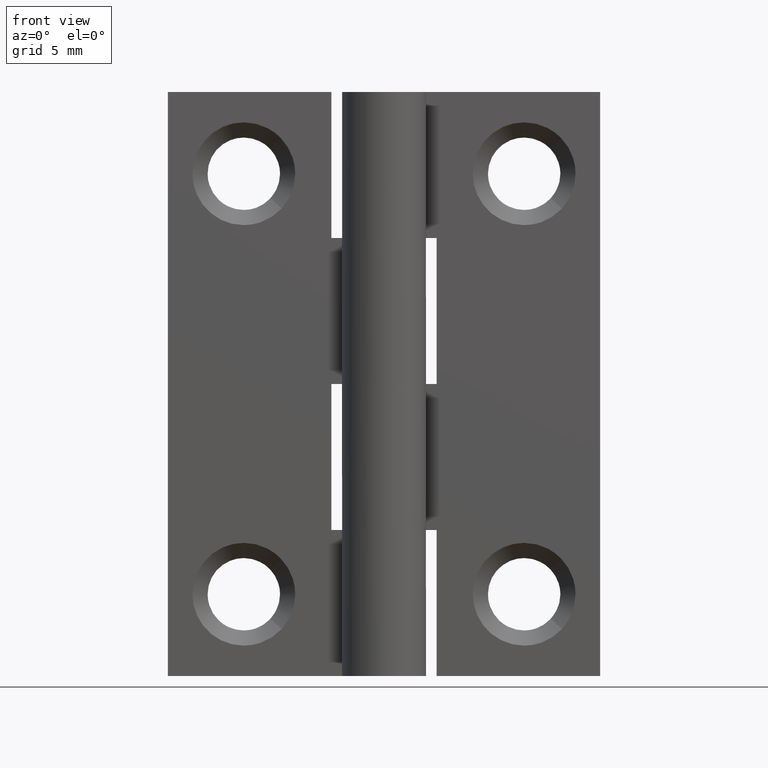
[diagram: clean part render]
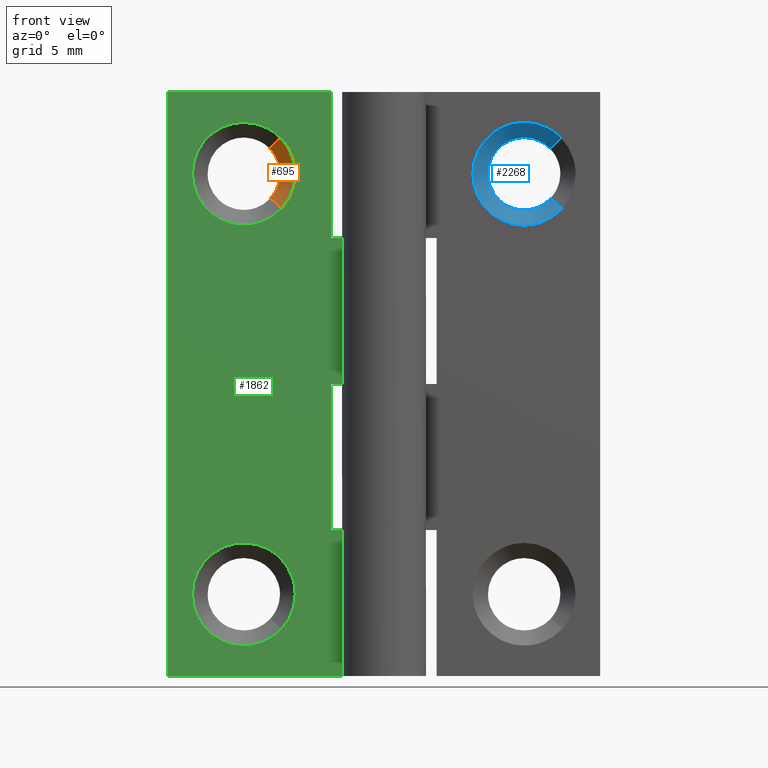
[diagram: same view with three faces highlighted in distinct colors, each labeled with its STEP entity id]
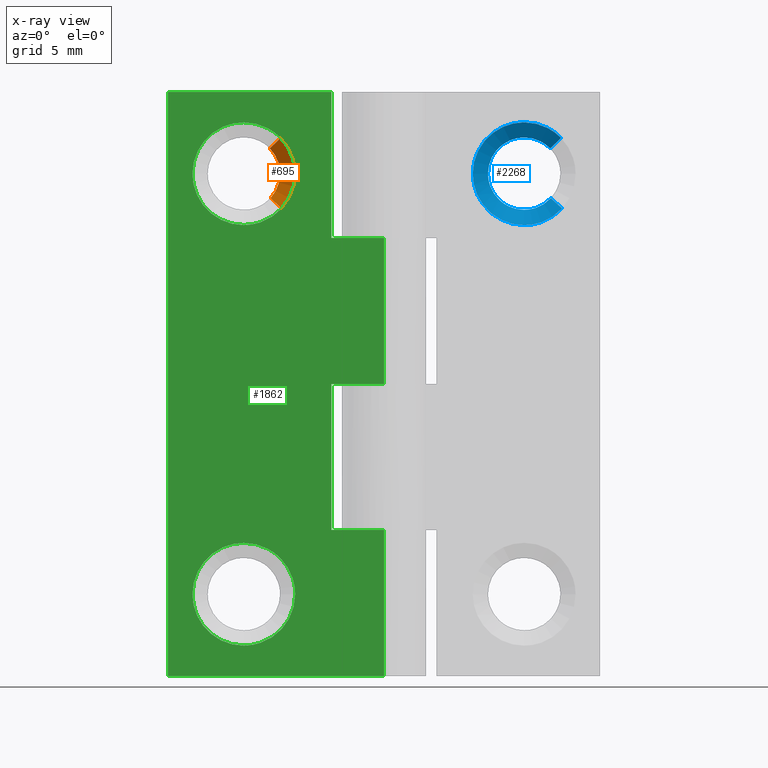
[diagram: x-ray of the same camera — body ghosted, the three highlighted faces saturated]
A machine part, front view with three faces highlighted in distinct colors.
The next image is the same camera in x-ray (body ghosted, the three faces saturated) — at least one of them is partly hidden behind the body in this view.
Their STEP definitions:

[orange] entity #695 — the highlighted face is a freeform B-spline surface patch.
#440=CARTESIAN_POINT('',(-4.857220048541205,1.650000063441865,20.452835105436360));
#441=VERTEX_POINT('',#440);
#451=CARTESIAN_POINT('',(-4.449999988079091,1.650000095367430,21.499999743619860));
#452=VERTEX_POINT('',#451);
#453=CARTESIAN_POINT('',(-4.449999988079091,1.650000095367430,21.499999743619860));
#454=CARTESIAN_POINT('',(-4.449987719164124,1.650000092081241,21.392212056831688));
#455=CARTESIAN_POINT('',(-4.475064349071539,1.650000084778587,21.152683532748259));
#456=CARTESIAN_POINT('',(-4.602483156833156,1.650000073658158,20.787931728221800));
#457=CARTESIAN_POINT('',(-4.760087620779355,1.650000066671442,20.558765611877210));
#458=CARTESIAN_POINT('',(-4.857220048541205,1.650000063441865,20.452835105436360));
#459=B_SPLINE_CURVE_WITH_KNOTS('',3,(#453,#454,#455,#456,#457,#458),.UNSPECIFIED.,.F.,.U.,(4,1,1,4),(7.206778E-009,0.323365275200569,0.718586559867803,1.149741867565531),.UNSPECIFIED.);
#460=EDGE_CURVE('',#452,#441,#459,.T.);
#462=CARTESIAN_POINT('',(-4.889191053383938,1.650000127403112,22.581019529490920));
#463=VERTEX_POINT('',#462);
#464=CARTESIAN_POINT('',(-4.889191053383938,1.650000127403112,22.581019529490920));
#465=CARTESIAN_POINT('',(-4.815312417647066,1.650000125153738,22.505116025787380));
#466=CARTESIAN_POINT('',(-4.667629936197859,1.650000119622016,22.318452462446949));
#467=CARTESIAN_POINT('',(-4.496328956959897,1.650000108845582,21.954809558195819));
#468=CARTESIAN_POINT('',(-4.449922581075541,1.650000100168413,21.662005349214841));
#469=CARTESIAN_POINT('',(-4.449999988079091,1.650000095367430,21.499999743619860));
#470=B_SPLINE_CURVE_WITH_KNOTS('',3,(#464,#465,#466,#467,#468,#469),.UNSPECIFIED.,.F.,.U.,(4,1,1,4),(7.687952E-009,0.317770022141391,0.710307216909040,1.196309682102102),.UNSPECIFIED.);
#471=EDGE_CURVE('',#463,#452,#470,.T.);
#575=CARTESIAN_POINT('',(-4.423367943478818,1.000000054208371,23.034350303094978));
#576=VERTEX_POINT('',#575);
#577=CARTESIAN_POINT('',(-4.889191053383938,1.650000127403112,22.581019529490920));
#578=CARTESIAN_POINT('',(-4.423367943478818,1.000000054208371,23.034350303094978));
#579=QUASI_UNIFORM_CURVE('',1,(#577,#578),.UNSPECIFIED.,.F.,.U.);
#580=EDGE_CURVE('',#463,#576,#579,.T.);
#628=CARTESIAN_POINT('',(-4.377989704373885,0.999999945977960,20.013701401540668));
#629=VERTEX_POINT('',#628);
#640=CARTESIAN_POINT('',(-4.857220048541205,1.650000063441865,20.452835105436360));
#641=CARTESIAN_POINT('',(-4.377989704373885,0.999999945977960,20.013701401540668));
#642=QUASI_UNIFORM_CURVE('',1,(#640,#641),.UNSPECIFIED.,.F.,.U.);
#643=EDGE_CURVE('',#441,#629,#642,.T.);
#653=CARTESIAN_POINT('',(-4.869200876537619,1.666250097751616,20.463813511619840));
#654=CARTESIAN_POINT('',(-3.890674601857112,1.666250097751615,21.531687553698323));
#655=CARTESIAN_POINT('',(-4.900836563448170,1.666250097751616,22.569686326019209));
#656=CARTESIAN_POINT('',(-4.365709547544705,0.983343747556210,20.002448711016179));
#657=CARTESIAN_POINT('',(-2.951491836364987,0.983343747556209,21.545796521589338));
#658=CARTESIAN_POINT('',(-4.411431108520517,0.983343747556210,23.045967018777347));
#666=(BOUNDED_SURFACE()B_SPLINE_SURFACE(2,1,((#653,#656),(#654,#657),(#655,#658)),.UNSPECIFIED.,.F.,.F.,.U.)B_SPLINE_SURFACE_WITH_KNOTS((3,3),(2,2),(0.0,3.524801735090279),(0.0,1.0),.UNSPECIFIED.)GEOMETRIC_REPRESENTATION_ITEM()RATIONAL_B_SPLINE_SURFACE(((1.0,1.0),(0.718822509939086,0.718822509939086),(0.977505800795127,0.977505800795127)))REPRESENTATION_ITEM('')SURFACE());
#667=ORIENTED_EDGE('',*,*,#471,.T.);
#668=ORIENTED_EDGE('',*,*,#460,.T.);
#669=ORIENTED_EDGE('',*,*,#643,.T.);
#670=CARTESIAN_POINT('',(-3.799999952316328,1.0,21.499999566172811));
#671=VERTEX_POINT('',#670);
#672=CARTESIAN_POINT('',(-3.799999952316328,1.0,21.499999566172811));
#673=CARTESIAN_POINT('',(-3.799997068031389,0.999999995675077,21.381008764471819));
#674=CARTESIAN_POINT('',(-3.822788362646365,0.999999985480515,21.100527655255519));
#675=CARTESIAN_POINT('',(-3.937791239896375,0.999999970513134,20.688733036061819));
#676=CARTESIAN_POINT('',(-4.135386750002986,0.999999956753300,20.310161240005641));
#677=CARTESIAN_POINT('',(-4.297596513956023,0.999999949166511,20.101427280786861));
#678=CARTESIAN_POINT('',(-4.377989704373885,0.999999945977960,20.013701401540668));
#679=B_SPLINE_CURVE_WITH_KNOTS('',3,(#672,#673,#674,#675,#676,#677,#678),.UNSPECIFIED.,.F.,.U.,(4,1,1,1,4),(5.727445E-009,0.356976115747982,0.841440549952373,1.274915535550264,1.631891645570999),.UNSPECIFIED.);
#680=EDGE_CURVE('',#671,#629,#679,.T.);
#681=ORIENTED_EDGE('',*,*,#680,.F.);
#682=CARTESIAN_POINT('',(-4.423367943478818,1.000000054208371,23.034350303094978));
#683=CARTESIAN_POINT('',(-4.330841075420065,1.000000050849956,22.939291347931331));
#684=CARTESIAN_POINT('',(-4.157470980341508,1.000000043295683,22.725470073343669));
#685=CARTESIAN_POINT('',(-3.959291439475692,1.000000030309538,22.357901601251310));
#686=CARTESIAN_POINT('',(-3.830031071692917,1.000000015621937,21.942173081330271));
#687=CARTESIAN_POINT('',(-3.799980880090818,1.000000005311584,21.650342654915711));
#688=CARTESIAN_POINT('',(-3.799999952316328,1.0,21.499999566172811));
#689=B_SPLINE_CURVE_WITH_KNOTS('',3,(#682,#683,#684,#685,#686,#687,#688),.UNSPECIFIED.,.F.,.U.,(4,1,1,1,4),(5.861646E-009,0.397965776495180,0.822466259856777,1.246959783288301,1.697988019448022),.UNSPECIFIED.);
#690=EDGE_CURVE('',#576,#671,#689,.T.);
#691=ORIENTED_EDGE('',*,*,#690,.F.);
#692=ORIENTED_EDGE('',*,*,#580,.F.);
#693=EDGE_LOOP('',(#667,#668,#669,#681,#691,#692));
#694=FACE_OUTER_BOUND('',#693,.T.);
#695=ADVANCED_FACE('',(#694),#666,.F.);

[blue] entity #2268 — the highlighted face is a freeform B-spline surface patch.
#1964=CARTESIAN_POINT('',(4.816488711542842,1.649999976150168,22.500900221674140));
#1965=VERTEX_POINT('',#1964);
#1966=CARTESIAN_POINT('',(6.0,1.649999976158140,23.050000011920929));
#1967=VERTEX_POINT('',#1966);
#1968=CARTESIAN_POINT('',(4.816488711542842,1.649999976150168,22.500900221674140));
#1969=CARTESIAN_POINT('',(4.897988254699667,1.649999976150714,22.597323346124998));
#1970=CARTESIAN_POINT('',(5.038060369335728,1.649999976151667,22.726850595842070));
#1971=CARTESIAN_POINT('',(5.311335245811836,1.649999976153496,22.899498486148811));
#1972=CARTESIAN_POINT('',(5.614247215063305,1.649999976155550,23.018135179880559));
#1973=CARTESIAN_POINT('',(5.873751313859565,1.649999976157285,23.050026474839040));
#1974=CARTESIAN_POINT('',(6.0,1.649999976158140,23.050000011920929));
#1975=B_SPLINE_CURVE_WITH_KNOTS('',3,(#1968,#1969,#1970,#1971,#1972,#1973,#1974),.UNSPECIFIED.,.F.,.U.,(4,1,1,1,4),(8.833140E-009,0.378746221844834,0.568120243163941,0.967906547145426,1.346652870738563),.UNSPECIFIED.);
#1976=EDGE_CURVE('',#1965,#1967,#1975,.T.);
#2038=CARTESIAN_POINT('',(4.933050459310293,1.649999976167430,20.375669751845191));
#2039=VERTEX_POINT('',#2038);
#2045=CARTESIAN_POINT('',(6.0,1.649999976158140,19.949999988079071));
#2046=VERTEX_POINT('',#2045);
#2047=CARTESIAN_POINT('',(6.0,1.649999976158140,19.949999988079071));
#2048=CARTESIAN_POINT('',(5.908062756338569,1.649999976158941,19.949991200788030));
#2049=CARTESIAN_POINT('',(5.730322389867601,1.649999976160486,19.965863178959300));
#2050=CARTESIAN_POINT('',(5.451040865478932,1.649999976162923,20.040430934254790));
#2051=CARTESIAN_POINT('',(5.179175147525877,1.649999976165288,20.172027392284800));
#2052=CARTESIAN_POINT('',(5.008623529221798,1.649999976166773,20.303938584391840));
#2053=CARTESIAN_POINT('',(4.933050459310293,1.649999976167430,20.375669751845191));
#2054=B_SPLINE_CURVE_WITH_KNOTS('',3,(#2047,#2048,#2049,#2050,#2051,#2052,#2053),.UNSPECIFIED.,.F.,.U.,(4,1,1,1,4),(7.082468E-009,0.275811247293351,0.533236658323165,0.864208669840786,1.176795112662131),.UNSPECIFIED.);
#2055=EDGE_CURVE('',#2046,#2039,#2054,.T.);
#2057=CARTESIAN_POINT('',(7.142779951458797,1.649999944232576,20.452835105436360));
#2058=VERTEX_POINT('',#2057);
#2059=CARTESIAN_POINT('',(7.142779951458797,1.649999944232576,20.452835105436360));
#2060=CARTESIAN_POINT('',(7.043340252355108,1.649999947010597,20.344238730321020));
#2061=CARTESIAN_POINT('',(6.855044385543772,1.649999952270977,20.190031661758510));
#2062=CARTESIAN_POINT('',(6.571085141084806,1.649999960203872,20.051709938848919));
#2063=CARTESIAN_POINT('',(6.301162115166700,1.649999967744652,19.970735417190280));
#2064=CARTESIAN_POINT('',(6.113778696551398,1.649999972979527,19.949976056516231));
#2065=CARTESIAN_POINT('',(6.0,1.649999976158140,19.949999988079071));
#2066=B_SPLINE_CURVE_WITH_KNOTS('',3,(#2059,#2060,#2061,#2062,#2063,#2064,#2065),.UNSPECIFIED.,.F.,.U.,(4,1,1,1,4),(8.217338E-009,0.441723530923200,0.722816589274277,0.943677308921619,1.285007694871770),.UNSPECIFIED.);
#2067=EDGE_CURVE('',#2058,#2046,#2066,.T.);
#2080=CARTESIAN_POINT('',(7.110808946616062,1.650000008193821,22.581019529490920));
#2081=VERTEX_POINT('',#2080);
#2092=CARTESIAN_POINT('',(6.0,1.649999976158140,23.050000011920929));
#2093=CARTESIAN_POINT('',(6.148361815843535,1.649999980436887,23.050053996776860));
#2094=CARTESIAN_POINT('',(6.380530000530061,1.649999987132613,23.016401404977270));
#2095=CARTESIAN_POINT('',(6.688442462497515,1.649999996012790,22.897558620824299));
#2096=CARTESIAN_POINT('',(6.915844602264912,1.650000002571059,22.760301693124429));
#2097=CARTESIAN_POINT('',(7.052331114469208,1.650000006507317,22.641115074687612));
#2098=CARTESIAN_POINT('',(7.110808946616062,1.650000008193821,22.581019529490920));
#2099=B_SPLINE_CURVE_WITH_KNOTS('',3,(#2092,#2093,#2094,#2095,#2096,#2097,#2098),.UNSPECIFIED.,.F.,.U.,(4,1,1,1,4),(7.938502E-009,0.445066984126021,0.696620764781736,0.986882929264315,1.238440114684984),.UNSPECIFIED.);
#2100=EDGE_CURVE('',#1967,#2081,#2099,.T.);
#2119=CARTESIAN_POINT('',(4.449999988079092,1.649999976158140,21.500000256380140));
#2120=VERTEX_POINT('',#2119);
#2121=CARTESIAN_POINT('',(4.449999988079092,1.649999976158140,21.500000256380140));
#2122=CARTESIAN_POINT('',(4.449996233969413,1.649999976157367,21.596340536460509));
#2123=CARTESIAN_POINT('',(4.471171609991687,1.649999976155574,21.823032570346090));
#2124=CARTESIAN_POINT('',(4.583606349983270,1.649999976152796,22.170902456364640));
#2125=CARTESIAN_POINT('',(4.728631358658272,1.649999976150993,22.397068744310431));
#2126=CARTESIAN_POINT('',(4.816488711542842,1.649999976150168,22.500900221674140));
#2127=B_SPLINE_CURVE_WITH_KNOTS('',3,(#2121,#2122,#2123,#2124,#2125,#2126),.UNSPECIFIED.,.F.,.U.,(4,1,1,4),(6.224523E-009,0.289026049830418,0.680060551453402,1.088097039100226),.UNSPECIFIED.);
#2128=EDGE_CURVE('',#2120,#1965,#2127,.T.);
#2130=CARTESIAN_POINT('',(4.933050459310293,1.649999976167430,20.375669751845191));
#2131=CARTESIAN_POINT('',(4.856997937539508,1.649999976166834,20.447818382913479));
#2132=CARTESIAN_POINT('',(4.736806159221439,1.649999976165679,20.587659132805850));
#2133=CARTESIAN_POINT('',(4.610024631643057,1.649999976163899,20.802765037426251));
#2134=CARTESIAN_POINT('',(4.489286828328108,1.649999976161502,21.093843722884049));
#2135=CARTESIAN_POINT('',(4.449882114436276,1.649999976159547,21.329632878637529));
#2136=CARTESIAN_POINT('',(4.449999988079092,1.649999976158140,21.500000256380140));
#2137=B_SPLINE_CURVE_WITH_KNOTS('',3,(#2130,#2131,#2132,#2133,#2134,#2135,#2136),.UNSPECIFIED.,.F.,.U.,(4,1,1,1,4),(8.580864E-009,0.314488692481329,0.550357089509432,0.746907306476254,1.257954744191694),.UNSPECIFIED.);
#2138=EDGE_CURVE('',#2039,#2120,#2137,.T.);
#2165=CARTESIAN_POINT('',(7.099163437619723,1.666249975562094,22.569686327058456));
#2166=CARTESIAN_POINT('',(7.068549474507638,1.666249975562094,22.601143912410578));
#2167=CARTESIAN_POINT('',(7.036186489386864,1.666249975562094,22.630799124561008));
#2168=CARTESIAN_POINT('',(5.905387364825854,1.666249975562094,23.666985613947880));
#2169=CARTESIAN_POINT('',(4.869200875438990,1.666249975562094,22.536186489386861));
#2170=CARTESIAN_POINT('',(3.833014386052125,1.666249975562094,21.405387364825859));
#2171=CARTESIAN_POINT('',(4.963813510613136,1.666249975562094,20.369200875438992));
#2172=CARTESIAN_POINT('',(6.094612635174146,1.666249975562094,19.333014386052128));
#2173=CARTESIAN_POINT('',(7.130799124561010,1.666249975562094,20.463813510613139));
#2174=CARTESIAN_POINT('',(7.588568847669166,0.983343750610948,23.045966976141926));
#2175=CARTESIAN_POINT('',(7.544323937004320,0.983343750610948,23.091431134066873));
#2176=CARTESIAN_POINT('',(7.497551247683637,0.983343750610948,23.134290407384050));
#2177=CARTESIAN_POINT('',(5.863260840299590,0.983343750610948,24.631841655067682));
#2178=CARTESIAN_POINT('',(4.365709592615954,0.983343750610948,22.997551247683639));
#2179=CARTESIAN_POINT('',(2.868158344932317,0.983343750610948,21.363260840299585));
#2180=CARTESIAN_POINT('',(4.502448752316363,0.983343750610948,19.865709592615950));
#2181=CARTESIAN_POINT('',(6.136739159700410,0.983343750610948,18.368158344932326));
#2182=CARTESIAN_POINT('',(7.634290407384047,0.983343750610948,20.002448752316369));
#2190=(BOUNDED_SURFACE()B_SPLINE_SURFACE(2,1,((#2165,#2174),(#2166,#2175),(#2167,#2176),(#2168,#2177),(#2169,#2178),(#2170,#2179),(#2171,#2180),(#2172,#2181),(#2173,#2182)),.UNSPECIFIED.,.F.,.F.,.U.)B_SPLINE_SURFACE_WITH_KNOTS((3,2,2,2,3),(2,2),(0.0,0.146907052268514,3.819583358981362,7.492259665694211,11.164935972407060),(0.0,1.0),.UNSPECIFIED.)GEOMETRIC_REPRESENTATION_ITEM()RATIONAL_B_SPLINE_SURFACE(((0.977505800795127,0.977505800795127),(0.988284271247462,0.988284271247462),(1.0,1.0),(0.707106781186548,0.707106781186548),(1.0,1.0),(0.707106781186548,0.707106781186548),(1.0,1.0),(0.707106781186548,0.707106781186548),(1.0,1.0)))REPRESENTATION_ITEM('')SURFACE());
#2191=ORIENTED_EDGE('',*,*,#2100,.T.);
#2192=CARTESIAN_POINT('',(7.576632013805459,1.000000054208369,23.034350261524789));
#2193=VERTEX_POINT('',#2192);
#2194=CARTESIAN_POINT('',(7.110808946616062,1.650000008193821,22.581019529490920));
#2195=CARTESIAN_POINT('',(7.576632013805459,1.000000054208369,23.034350261524789));
#2196=QUASI_UNIFORM_CURVE('',1,(#2194,#2195),.UNSPECIFIED.,.F.,.U.);
#2197=EDGE_CURVE('',#2081,#2193,#2196,.T.);
#2198=ORIENTED_EDGE('',*,*,#2197,.T.);
#2199=CARTESIAN_POINT('',(6.0,1.0,23.699999988079071));
#2200=VERTEX_POINT('',#2199);
#2201=CARTESIAN_POINT('',(6.0,1.0,23.699999988079071));
#2202=CARTESIAN_POINT('',(6.155637429331294,1.000000005351186,23.700023998459422));
#2203=CARTESIAN_POINT('',(6.476058683373785,1.000000016368033,23.665863118007881));
#2204=CARTESIAN_POINT('',(6.851527400994931,1.000000029277544,23.539536382101129));
#2205=CARTESIAN_POINT('',(7.232288617734605,1.000000042369020,23.337946687692980));
#2206=CARTESIAN_POINT('',(7.442587768079664,1.000000049599610,23.172184968655500));
#2207=CARTESIAN_POINT('',(7.576632013805459,1.000000054208369,23.034350261524789));
#2208=B_SPLINE_CURVE_WITH_KNOTS('',3,(#2201,#2202,#2203,#2204,#2205,#2206,#2207),.UNSPECIFIED.,.F.,.U.,(4,1,1,1,4),(5.719588E-009,0.466912277907277,0.961284339051290,1.181010903435810,1.757785935713405),.UNSPECIFIED.);
#2209=EDGE_CURVE('',#2200,#2193,#2208,.T.);
#2210=ORIENTED_EDGE('',*,*,#2209,.F.);
#2211=CARTESIAN_POINT('',(3.800000011920973,1.0,21.500000433827172));
#2212=VERTEX_POINT('',#2211);
#2213=CARTESIAN_POINT('',(3.800000011920973,1.0,21.500000433827172));
#2214=CARTESIAN_POINT('',(3.799974195026348,1.000000000000000,21.652991611931618));
#2215=CARTESIAN_POINT('',(3.826398711246591,1.000000000000001,21.904961777194131));
#2216=CARTESIAN_POINT('',(3.932132168610003,0.999999999999999,22.278129226932940));
#2217=CARTESIAN_POINT('',(4.099928185749225,1.000000000000001,22.638648158410899));
#2218=CARTESIAN_POINT('',(4.385768957659514,1.000000000000002,23.024117667371350));
#2219=CARTESIAN_POINT('',(4.746558040972515,0.999999999999994,23.327663256329661));
#2220=CARTESIAN_POINT('',(5.144872585224546,1.000000000000010,23.540547205608881));
#2221=CARTESIAN_POINT('',(5.550041442919448,0.999999999999995,23.668896185785201));
#2222=CARTESIAN_POINT('',(5.847010293518394,1.0,23.700023296449999));
#2223=CARTESIAN_POINT('',(6.0,1.0,23.699999988079071));
#2224=B_SPLINE_CURVE_WITH_KNOTS('',3,(#2213,#2214,#2215,#2216,#2217,#2218,#2219,#2220,#2221,#2222,#2223),.UNSPECIFIED.,.F.,.U.,(4,1,1,1,1,1,1,1,4),(0.000000020179880,0.458969607184817,0.755950194433106,1.160927977237425,1.646902264483788,2.186852911465440,2.564831395074330,2.996807106679144,3.455773339086540),.UNSPECIFIED.);
#2225=EDGE_CURVE('',#2212,#2200,#2224,.T.);
#2226=ORIENTED_EDGE('',*,*,#2225,.F.);
#2227=CARTESIAN_POINT('',(6.0,1.0,19.300000011920929));
#2228=VERTEX_POINT('',#2227);
#2229=CARTESIAN_POINT('',(6.0,1.0,19.300000011920929));
#2230=CARTESIAN_POINT('',(5.847009277024644,1.000000000000002,19.299975179181249));
#2231=CARTESIAN_POINT('',(5.577038584486604,0.999999999999997,19.328281131147889));
#2232=CARTESIAN_POINT('',(5.248141854400426,1.000000000000004,19.425853236892632));
#2233=CARTESIAN_POINT('',(4.968076251935238,0.999999999999997,19.550002734716792));
#2234=CARTESIAN_POINT('',(4.698049238834035,1.000000000000005,19.714097502006290));
#2235=CARTESIAN_POINT('',(4.397101456608254,0.999999999999979,19.973689029424872));
#2236=CARTESIAN_POINT('',(4.167071314575439,1.000000000000048,20.264740284337279));
#2237=CARTESIAN_POINT('',(3.967070073598944,0.999999999999960,20.628099084459251));
#2238=CARTESIAN_POINT('',(3.833913248555124,1.000000000000018,21.023035216378339));
#2239=CARTESIAN_POINT('',(3.799980905496233,0.999999999999996,21.347012541784949));
#2240=CARTESIAN_POINT('',(3.800000011920973,1.0,21.500000433827172));
#2241=B_SPLINE_CURVE_WITH_KNOTS('',3,(#2229,#2230,#2231,#2232,#2233,#2234,#2235,#2236,#2237,#2238,#2239,#2240),.UNSPECIFIED.,.F.,.U.,(4,1,1,1,1,1,1,1,1,4),(0.000000020029830,0.458969671944964,0.809946410898050,1.025934864390435,1.376911121608987,1.754879398334417,2.213854498576877,2.483836403650557,2.996807530901767,3.455773828113946),.UNSPECIFIED.);
#2242=EDGE_CURVE('',#2228,#2212,#2241,.T.);
#2243=ORIENTED_EDGE('',*,*,#2242,.F.);
#2244=CARTESIAN_POINT('',(7.622010251680963,0.999999945977962,20.013701441808980));
#2245=VERTEX_POINT('',#2244);
#2246=CARTESIAN_POINT('',(7.622010251680963,0.999999945977962,20.013701441808980));
#2247=CARTESIAN_POINT('',(7.525758198990001,0.999999949183695,19.908633857254159));
#2248=CARTESIAN_POINT('',(7.348233462643220,0.999999955096266,19.749207767785990));
#2249=CARTESIAN_POINT('',(7.011633754743281,0.999999966306920,19.533452059328020));
#2250=CARTESIAN_POINT('',(6.579422843164144,0.999999980701971,19.353200017306051));
#2251=CARTESIAN_POINT('',(6.208993157771568,0.999999993039356,19.299915402571688));
#2252=CARTESIAN_POINT('',(6.0,1.0,19.300000011920929));
#2253=B_SPLINE_CURVE_WITH_KNOTS('',3,(#2246,#2247,#2248,#2249,#2250,#2251,#2252),.UNSPECIFIED.,.F.,.U.,(4,1,1,1,4),(5.489533E-009,0.427472191418000,0.712455558367278,1.196920730413520,1.823881876414107),.UNSPECIFIED.);
#2254=EDGE_CURVE('',#2245,#2228,#2253,.T.);
#2255=ORIENTED_EDGE('',*,*,#2254,.F.);
#2256=CARTESIAN_POINT('',(7.142779951458797,1.649999944232576,20.452835105436360));
#2257=CARTESIAN_POINT('',(7.622010251680963,0.999999945977962,20.013701441808980));
#2258=QUASI_UNIFORM_CURVE('',1,(#2256,#2257),.UNSPECIFIED.,.F.,.U.);
#2259=EDGE_CURVE('',#2058,#2245,#2258,.T.);
#2260=ORIENTED_EDGE('',*,*,#2259,.F.);
#2261=ORIENTED_EDGE('',*,*,#2067,.T.);
#2262=ORIENTED_EDGE('',*,*,#2055,.T.);
#2263=ORIENTED_EDGE('',*,*,#2138,.T.);
#2264=ORIENTED_EDGE('',*,*,#2128,.T.);
#2265=ORIENTED_EDGE('',*,*,#1976,.T.);
#2266=EDGE_LOOP('',(#2191,#2198,#2210,#2226,#2243,#2255,#2260,#2261,#2262,#2263,#2264,#2265));
#2267=FACE_OUTER_BOUND('',#2266,.T.);
#2268=ADVANCED_FACE('',(#2267),#2190,.F.);

[green] entity #1862 — the highlighted face is a freeform B-spline surface patch.
#575=CARTESIAN_POINT('',(-4.423367943478818,1.000000054208371,23.034350303094978));
#576=VERTEX_POINT('',#575);
#582=CARTESIAN_POINT('',(-6.0,1.0,23.700000047683709));
#583=VERTEX_POINT('',#582);
#584=CARTESIAN_POINT('',(-6.0,1.0,23.700000047683709));
#585=CARTESIAN_POINT('',(-5.844361861534652,1.000000005351210,23.700022970800529));
#586=CARTESIAN_POINT('',(-5.578873253267299,1.000000014479342,23.671706727795652));
#587=CARTESIAN_POINT('',(-5.235483921304647,1.000000026285888,23.570293756942220));
#588=CARTESIAN_POINT('',(-4.934559164405360,1.000000036632394,23.434300413913409));
#589=CARTESIAN_POINT('',(-4.664504799056893,1.000000045917521,23.259575185983770));
#590=CARTESIAN_POINT('',(-4.493601668771047,1.000000051793559,23.106521573208749));
#591=CARTESIAN_POINT('',(-4.423367943478818,1.000000054208371,23.034350303094978));
#592=B_SPLINE_CURVE_WITH_KNOTS('',3,(#584,#585,#586,#587,#588,#589,#590,#591),.UNSPECIFIED.,.F.,.U.,(4,1,1,1,1,4),(5.719834E-009,0.466912290557425,0.796501623968098,1.071149833447001,1.455668042440764,1.757785983337126),.UNSPECIFIED.);
#593=EDGE_CURVE('',#583,#576,#592,.T.);
#595=CARTESIAN_POINT('',(-8.200000047683673,1.0,21.500000433827179));
#596=VERTEX_POINT('',#595);
#597=CARTESIAN_POINT('',(-8.200000047683673,1.0,21.500000433827179));
#598=CARTESIAN_POINT('',(-8.200024722365999,0.999999999999999,21.652991258020499));
#599=CARTESIAN_POINT('',(-8.171717015646792,1.000000000000001,21.922960502346250));
#600=CARTESIAN_POINT('',(-8.051053520143784,0.999999999999998,22.329764884967890));
#601=CARTESIAN_POINT('',(-7.886340495025902,1.000000000000003,22.652046332074221));
#602=CARTESIAN_POINT('',(-7.666115346956123,1.000000000000001,22.948960681299859));
#603=CARTESIAN_POINT('',(-7.417034648912013,0.999999999999993,23.198062570535711));
#604=CARTESIAN_POINT('',(-7.120200124953402,1.000000000000017,23.404392975907069));
#605=CARTESIAN_POINT('',(-6.778734353564584,0.999999999999989,23.568471822915690));
#606=CARTESIAN_POINT('',(-6.413967140441412,1.000000000000006,23.674251306849762));
#607=CARTESIAN_POINT('',(-6.134988398284077,0.999999999999999,23.700012468645010));
#608=CARTESIAN_POINT('',(-6.0,1.0,23.700000047683709));
#609=B_SPLINE_CURVE_WITH_KNOTS('',3,(#597,#598,#599,#600,#601,#602,#603,#604,#605,#606,#607,#608),.UNSPECIFIED.,.F.,.U.,(4,1,1,1,1,1,1,1,1,4),(0.000000020179045,0.458969619619189,0.809946318355488,1.268921409519724,1.538901418501952,1.916870994548575,2.321844510262566,2.618828694167005,3.050806356861387,3.455773432713877),.UNSPECIFIED.);
#610=EDGE_CURVE('',#596,#583,#609,.T.);
#612=CARTESIAN_POINT('',(-6.0,1.0,19.299999952316281));
#613=VERTEX_POINT('',#612);
#614=CARTESIAN_POINT('',(-6.0,1.0,19.299999952316281));
#615=CARTESIAN_POINT('',(-6.134988207699197,0.999999999999997,19.299989572533661));
#616=CARTESIAN_POINT('',(-6.422965170345593,1.000000000000004,19.326580174356049));
#617=CARTESIAN_POINT('',(-6.882749191128951,0.999999999999994,19.462922989624658));
#618=CARTESIAN_POINT('',(-7.323346748264912,1.000000000000012,19.716111277575440));
#619=CARTESIAN_POINT('',(-7.631530112604496,0.999999999999983,20.009573022971530));
#620=CARTESIAN_POINT('',(-7.844292664019492,1.000000000000012,20.289239108296432));
#621=CARTESIAN_POINT('',(-8.001728458956540,1.000000000000019,20.563205529948149));
#622=CARTESIAN_POINT('',(-8.155958811059607,0.999999999999979,20.978069892215551));
#623=CARTESIAN_POINT('',(-8.200066360071331,1.000000000000019,21.302007907667260));
#624=CARTESIAN_POINT('',(-8.200000047683673,1.0,21.500000433827179));
#625=B_SPLINE_CURVE_WITH_KNOTS('',3,(#614,#615,#616,#617,#618,#619,#620,#621,#622,#623,#624),.UNSPECIFIED.,.F.,.U.,(4,1,1,1,1,1,1,1,4),(0.000000020033373,0.404968131861680,0.863943625319908,1.430912782389232,1.916871265343811,2.132854103729981,2.483836470946575,2.861816053471642,3.455773921741274),.UNSPECIFIED.);
#626=EDGE_CURVE('',#613,#596,#625,.T.);
#628=CARTESIAN_POINT('',(-4.377989704373885,0.999999945977960,20.013701401540668));
#629=VERTEX_POINT('',#628);
#630=CARTESIAN_POINT('',(-4.377989704373885,0.999999945977960,20.013701401540668));
#631=CARTESIAN_POINT('',(-4.519122447265095,0.999999950678471,19.859549199439549));
#632=CARTESIAN_POINT('',(-4.764128467510482,0.999999958838548,19.658964720385590));
#633=CARTESIAN_POINT('',(-5.196542544143657,0.999999973240362,19.437748579664930));
#634=CARTESIAN_POINT('',(-5.582025624119875,0.999999986079103,19.324837602531758));
#635=CARTESIAN_POINT('',(-5.876509936503215,0.999999995887092,19.299994917862278));
#636=CARTESIAN_POINT('',(-6.0,1.0,19.299999952316281));
#637=B_SPLINE_CURVE_WITH_KNOTS('',3,(#630,#631,#632,#633,#634,#635,#636),.UNSPECIFIED.,.F.,.U.,(4,1,1,1,4),(5.488308E-009,0.626961168477783,0.940436631091583,1.453406998580252,1.823881925828574),.UNSPECIFIED.);
#638=EDGE_CURVE('',#629,#613,#637,.T.);
#670=CARTESIAN_POINT('',(-3.799999952316328,1.0,21.499999566172811));
#671=VERTEX_POINT('',#670);
#672=CARTESIAN_POINT('',(-3.799999952316328,1.0,21.499999566172811));
#673=CARTESIAN_POINT('',(-3.799997068031389,0.999999995675077,21.381008764471819));
#674=CARTESIAN_POINT('',(-3.822788362646365,0.999999985480515,21.100527655255519));
#675=CARTESIAN_POINT('',(-3.937791239896375,0.999999970513134,20.688733036061819));
#676=CARTESIAN_POINT('',(-4.135386750002986,0.999999956753300,20.310161240005641));
#677=CARTESIAN_POINT('',(-4.297596513956023,0.999999949166511,20.101427280786861));
#678=CARTESIAN_POINT('',(-4.377989704373885,0.999999945977960,20.013701401540668));
#679=B_SPLINE_CURVE_WITH_KNOTS('',3,(#672,#673,#674,#675,#676,#677,#678),.UNSPECIFIED.,.F.,.U.,(4,1,1,1,4),(5.727445E-009,0.356976115747982,0.841440549952373,1.274915535550264,1.631891645570999),.UNSPECIFIED.);
#680=EDGE_CURVE('',#671,#629,#679,.T.);
#682=CARTESIAN_POINT('',(-4.423367943478818,1.000000054208371,23.034350303094978));
#683=CARTESIAN_POINT('',(-4.330841075420065,1.000000050849956,22.939291347931331));
#684=CARTESIAN_POINT('',(-4.157470980341508,1.000000043295683,22.725470073343669));
#685=CARTESIAN_POINT('',(-3.959291439475692,1.000000030309538,22.357901601251310));
#686=CARTESIAN_POINT('',(-3.830031071692917,1.000000015621937,21.942173081330271));
#687=CARTESIAN_POINT('',(-3.799980880090818,1.000000005311584,21.650342654915711));
#688=CARTESIAN_POINT('',(-3.799999952316328,1.0,21.499999566172811));
#689=B_SPLINE_CURVE_WITH_KNOTS('',3,(#682,#683,#684,#685,#686,#687,#688),.UNSPECIFIED.,.F.,.U.,(4,1,1,1,4),(5.861646E-009,0.397965776495180,0.822466259856777,1.246959783288301,1.697988019448022),.UNSPECIFIED.);
#690=EDGE_CURVE('',#576,#671,#689,.T.);
#953=CARTESIAN_POINT('',(-4.423367943478817,1.000000054208371,5.034350303094983));
#954=VERTEX_POINT('',#953);
#960=CARTESIAN_POINT('',(-6.0,1.0,5.700000047683715));
#961=VERTEX_POINT('',#960);
#962=CARTESIAN_POINT('',(-6.0,1.0,5.700000047683715));
#963=CARTESIAN_POINT('',(-5.789420847474021,1.000000007240213,5.700091936207877));
#964=CARTESIAN_POINT('',(-5.450738049906332,1.000000018884939,5.650976136891214));
#965=CARTESIAN_POINT('',(-5.048750998614805,1.000000032706208,5.492936244128042));
#966=CARTESIAN_POINT('',(-4.723185274672233,1.000000043899936,5.304651754558314));
#967=CARTESIAN_POINT('',(-4.531897495552665,1.000000050476867,5.145906760436917));
#968=CARTESIAN_POINT('',(-4.423367943478817,1.000000054208371,5.034350303094983));
#969=B_SPLINE_CURVE_WITH_KNOTS('',3,(#962,#963,#964,#965,#966,#967,#968),.UNSPECIFIED.,.F.,.U.,(4,1,1,1,4),(5.722056E-009,0.631706894724659,1.016217101206843,1.290873698506844,1.757785983337122),.UNSPECIFIED.);
#970=EDGE_CURVE('',#961,#954,#969,.T.);
#972=CARTESIAN_POINT('',(-8.200000047683671,1.0,3.500000433827180));
#973=VERTEX_POINT('',#972);
#974=CARTESIAN_POINT('',(-8.200000047683671,1.0,3.500000433827180));
#975=CARTESIAN_POINT('',(-8.200055629139255,0.999999999999998,3.688989728518661));
#976=CARTESIAN_POINT('',(-8.155653124498393,1.000000000000003,4.030939230013921));
#977=CARTESIAN_POINT('',(-7.973009519668042,1.000000000000000,4.513282235327965));
#978=CARTESIAN_POINT('',(-7.733595576255386,0.999999999999993,4.876358902597320));
#979=CARTESIAN_POINT('',(-7.431090926906129,1.000000000000019,5.186372397839069));
#980=CARTESIAN_POINT('',(-7.151199746016692,0.999999999999971,5.386075216557541));
#981=CARTESIAN_POINT('',(-6.820096960747799,1.000000000000013,5.550191628434222));
#982=CARTESIAN_POINT('',(-6.458958523203153,0.999999999999989,5.667050115339922));
#983=CARTESIAN_POINT('',(-6.161989674237372,1.000000000000005,5.700028570042426));
#984=CARTESIAN_POINT('',(-6.0,1.0,5.700000047683715));
#985=B_SPLINE_CURVE_WITH_KNOTS('',3,(#974,#975,#976,#977,#978,#979,#980,#981,#982,#983,#984),.UNSPECIFIED.,.F.,.U.,(4,1,1,1,1,1,1,1,4),(0.000000020180313,0.566959551280709,1.025934747152363,1.538901418502604,1.862871050734243,2.321844510262795,2.564831464563414,2.969805913548071,3.455773432713880),.UNSPECIFIED.);
#986=EDGE_CURVE('',#973,#961,#985,.T.);
#988=CARTESIAN_POINT('',(-6.0,1.0,1.299999952316285));
#989=VERTEX_POINT('',#988);
#990=CARTESIAN_POINT('',(-6.0,1.0,1.299999952316285));
#991=CARTESIAN_POINT('',(-6.188987971012792,0.999999999999998,1.299952119062734));
#992=CARTESIAN_POINT('',(-6.530941379996336,1.000000000000001,1.344337524195129));
#993=CARTESIAN_POINT('',(-7.013280513351242,1.000000000000001,1.526995135004539));
#994=CARTESIAN_POINT('',(-7.376359338047859,0.999999999999996,1.766403306554458));
#995=CARTESIAN_POINT('',(-7.686371077069610,1.000000000000007,2.068909944953273));
#996=CARTESIAN_POINT('',(-7.886078108668004,0.999999999999996,2.348799578812736));
#997=CARTESIAN_POINT('',(-8.042178172503366,1.000000000000002,2.663755883194949));
#998=CARTESIAN_POINT('',(-8.163343019536720,0.999999999999997,3.023054441242467));
#999=CARTESIAN_POINT('',(-8.200046931571896,1.000000000000001,3.320010042993583));
#1000=CARTESIAN_POINT('',(-8.200000047683671,1.0,3.500000433827180));
#1001=B_SPLINE_CURVE_WITH_KNOTS('',3,(#990,#991,#992,#993,#994,#995,#996,#997,#998,#999,#1000),.UNSPECIFIED.,.F.,.U.,(4,1,1,1,1,1,1,1,4),(0.000000020028221,0.566959631406979,1.025934892184190,1.538901635847933,1.862871314667447,2.321844838962675,2.564831827554968,2.915813343853341,3.455773921741272),.UNSPECIFIED.);
#1002=EDGE_CURVE('',#989,#973,#1001,.T.);
#1004=CARTESIAN_POINT('',(-4.377989704373885,0.999999945977961,2.013701401540671));
#1005=VERTEX_POINT('',#1004);
#1006=CARTESIAN_POINT('',(-4.377989704373885,0.999999945977961,2.013701401540671));
#1007=CARTESIAN_POINT('',(-4.487068607214611,0.999999949610902,1.894616453664814));
#1008=CARTESIAN_POINT('',(-4.695666288537909,0.999999956558369,1.712135696638197));
#1009=CARTESIAN_POINT('',(-5.081787519679289,0.999999969418379,1.485291762876137));
#1010=CARTESIAN_POINT('',(-5.506041954534298,0.999999983548420,1.336760366909522));
#1011=CARTESIAN_POINT('',(-5.838510424592878,0.999999994621495,1.299974753786340));
#1012=CARTESIAN_POINT('',(-6.0,1.0,1.299999952316285));
#1013=B_SPLINE_CURVE_WITH_KNOTS('',3,(#1006,#1007,#1008,#1009,#1010,#1011,#1012),.UNSPECIFIED.,.F.,.U.,(4,1,1,1,4),(5.488872E-009,0.484468768152323,0.826451207750634,1.339413163169094,1.823881925828573),.UNSPECIFIED.);
#1014=EDGE_CURVE('',#1005,#989,#1013,.T.);
#1046=CARTESIAN_POINT('',(-3.799999952316328,1.0,3.499999566172814));
#1047=VERTEX_POINT('',#1046);
#1048=CARTESIAN_POINT('',(-3.799999952316328,1.0,3.499999566172814));
#1049=CARTESIAN_POINT('',(-3.799950323080936,0.999999993512370,3.321506581185288));
#1050=CARTESIAN_POINT('',(-3.836414558190124,0.999999982700940,3.024053776550056));
#1051=CARTESIAN_POINT('',(-3.961495082788649,0.999999969187807,2.652269508919157));
#1052=CARTESIAN_POINT('',(-4.127155983481520,0.999999957316726,2.325662699626688));
#1053=CARTESIAN_POINT('',(-4.274610406478383,0.999999950077129,2.126480911175672));
#1054=CARTESIAN_POINT('',(-4.377989704373885,0.999999945977961,2.013701401540671));
#1055=B_SPLINE_CURVE_WITH_KNOTS('',3,(#1048,#1049,#1050,#1051,#1052,#1053,#1054),.UNSPECIFIED.,.F.,.U.,(4,1,1,1,4),(5.728971E-009,0.535466171289904,0.892436626649941,1.172921935670073,1.631891645571006),.UNSPECIFIED.);
#1056=EDGE_CURVE('',#1047,#1005,#1055,.T.);
#1058=CARTESIAN_POINT('',(-4.423367943478817,1.000000054208371,5.034350303094983));
#1059=CARTESIAN_POINT('',(-4.330840754351597,1.000000050849983,4.939292126423677));
#1060=CARTESIAN_POINT('',(-4.179853320515391,1.000000044270205,4.753053648827005));
#1061=CARTESIAN_POINT('',(-3.973258732079950,1.000000031483036,4.391116852284044));
#1062=CARTESIAN_POINT('',(-3.833651807150518,1.000000016871994,3.977555969747357));
#1063=CARTESIAN_POINT('',(-3.799984364561420,1.000000005311545,3.650341172573765));
#1064=CARTESIAN_POINT('',(-3.799999952316328,1.0,3.499999566172814));
#1065=B_SPLINE_CURVE_WITH_KNOTS('',3,(#1058,#1059,#1060,#1061,#1062,#1063,#1064),.UNSPECIFIED.,.F.,.U.,(4,1,1,1,4),(5.860507E-009,0.397965776494357,0.716339815028501,1.246959783288153,1.697988019448024),.UNSPECIFIED.);
#1066=EDGE_CURVE('',#954,#1047,#1065,.T.);
#1131=CARTESIAN_POINT('',(-2.250000000000000,1.0,18.750000000000000));
#1132=VERTEX_POINT('',#1131);
#1138=CARTESIAN_POINT('',(6.123122E-017,1.0,18.750000000000000));
#1139=VERTEX_POINT('',#1138);
#1140=CARTESIAN_POINT('',(-2.250000000000000,1.0,18.750000000000000));
#1141=CARTESIAN_POINT('',(6.123122E-017,1.0,18.750000000000000));
#1142=QUASI_UNIFORM_CURVE('',1,(#1140,#1141),.UNSPECIFIED.,.F.,.U.);
#1143=EDGE_CURVE('',#1132,#1139,#1142,.T.);
#1197=CARTESIAN_POINT('',(-2.250000000000000,1.0,25.0));
#1198=VERTEX_POINT('',#1197);
#1199=CARTESIAN_POINT('',(-2.250000000000000,1.0,25.0));
#1200=CARTESIAN_POINT('',(-2.250000000000000,1.0,18.750000000000000));
#1201=QUASI_UNIFORM_CURVE('',1,(#1199,#1200),.UNSPECIFIED.,.F.,.U.);
#1202=EDGE_CURVE('',#1198,#1132,#1201,.T.);
#1225=CARTESIAN_POINT('',(-2.250000000000000,1.0,12.499999999999840));
#1226=VERTEX_POINT('',#1225);
#1227=CARTESIAN_POINT('',(-2.250000000000000,1.0,6.250000000000000));
#1228=VERTEX_POINT('',#1227);
#1229=CARTESIAN_POINT('',(-2.250000000000000,1.0,12.499999999999840));
#1230=CARTESIAN_POINT('',(-2.250000000000000,1.0,6.250000000000000));
#1231=QUASI_UNIFORM_CURVE('',1,(#1229,#1230),.UNSPECIFIED.,.F.,.U.);
#1232=EDGE_CURVE('',#1226,#1228,#1231,.T.);
#1336=CARTESIAN_POINT('',(6.123122E-017,1.0,12.500000000000000));
#1337=VERTEX_POINT('',#1336);
#1356=CARTESIAN_POINT('',(6.123122E-017,1.0,12.500000000000000));
#1357=CARTESIAN_POINT('',(-2.250000000000000,1.0,12.499999999999840));
#1358=QUASI_UNIFORM_CURVE('',1,(#1356,#1357),.UNSPECIFIED.,.F.,.U.);
#1359=EDGE_CURVE('',#1337,#1226,#1358,.T.);
#1427=CARTESIAN_POINT('',(6.123122E-017,1.0,6.250000000000000));
#1428=VERTEX_POINT('',#1427);
#1429=CARTESIAN_POINT('',(-2.250000000000000,1.0,6.250000000000000));
#1430=CARTESIAN_POINT('',(6.123122E-017,1.0,6.250000000000000));
#1431=QUASI_UNIFORM_CURVE('',1,(#1429,#1430),.UNSPECIFIED.,.F.,.U.);
#1432=EDGE_CURVE('',#1228,#1428,#1431,.T.);
#1488=CARTESIAN_POINT('',(-9.250000000000000,1.0,0.0));
#1489=VERTEX_POINT('',#1488);
#1573=CARTESIAN_POINT('',(6.123032E-017,1.0,0.0));
#1574=VERTEX_POINT('',#1573);
#1593=CARTESIAN_POINT('',(6.123032E-017,1.0,0.0));
#1594=CARTESIAN_POINT('',(-9.250000000000000,1.0,0.0));
#1595=QUASI_UNIFORM_CURVE('',1,(#1593,#1594),.UNSPECIFIED.,.F.,.U.);
#1596=EDGE_CURVE('',#1574,#1489,#1595,.T.);
#1606=CARTESIAN_POINT('',(-9.250000000000000,1.0,25.0));
#1607=VERTEX_POINT('',#1606);
#1608=CARTESIAN_POINT('',(-2.250000000000000,1.0,25.0));
#1609=CARTESIAN_POINT('',(-9.250000000000000,1.0,25.0));
#1610=QUASI_UNIFORM_CURVE('',1,(#1608,#1609),.UNSPECIFIED.,.F.,.U.);
#1611=EDGE_CURVE('',#1198,#1607,#1610,.T.);
#1658=CARTESIAN_POINT('',(6.123122E-017,1.0,18.750000000000000));
#1659=CARTESIAN_POINT('',(6.123122E-017,1.0,12.500000000000000));
#1660=QUASI_UNIFORM_CURVE('',1,(#1658,#1659),.UNSPECIFIED.,.F.,.U.);
#1661=EDGE_CURVE('',#1139,#1337,#1660,.T.);
#1725=CARTESIAN_POINT('',(-9.250000000000000,1.0,25.0));
#1726=CARTESIAN_POINT('',(-9.250000000000000,1.0,0.0));
#1727=QUASI_UNIFORM_CURVE('',1,(#1725,#1726),.UNSPECIFIED.,.F.,.U.);
#1728=EDGE_CURVE('',#1607,#1489,#1727,.T.);
#1768=CARTESIAN_POINT('',(6.123122E-017,1.0,6.250000000000000));
#1769=CARTESIAN_POINT('',(6.123032E-017,1.0,0.0));
#1770=QUASI_UNIFORM_CURVE('',1,(#1768,#1769),.UNSPECIFIED.,.F.,.U.);
#1771=EDGE_CURVE('',#1428,#1574,#1770,.T.);
#1829=CARTESIAN_POINT('',(-9.712037482071706,1.0,26.248749951545150));
#1830=CARTESIAN_POINT('',(-9.712037482071706,1.0,-1.248750622097403));
#1831=CARTESIAN_POINT('',(0.462037730176038,1.0,26.248749951545150));
#1832=CARTESIAN_POINT('',(0.462037730176038,1.0,-1.248750622097403));
#1833=B_SPLINE_SURFACE_WITH_KNOTS('',1,1,((#1829,#1831),(#1830,#1832)),.UNSPECIFIED.,.F.,.F.,.U.,(2,2),(2,2),(0.0,27.497500573642551),(0.0,10.174075212247740),.UNSPECIFIED.);
#1834=ORIENTED_EDGE('',*,*,#1202,.F.);
#1835=ORIENTED_EDGE('',*,*,#1611,.T.);
#1836=ORIENTED_EDGE('',*,*,#1728,.T.);
#1837=ORIENTED_EDGE('',*,*,#1596,.F.);
#1838=ORIENTED_EDGE('',*,*,#1771,.F.);
#1839=ORIENTED_EDGE('',*,*,#1432,.F.);
#1840=ORIENTED_EDGE('',*,*,#1232,.F.);
#1841=ORIENTED_EDGE('',*,*,#1359,.F.);
#1842=ORIENTED_EDGE('',*,*,#1661,.F.);
#1843=ORIENTED_EDGE('',*,*,#1143,.F.);
#1844=EDGE_LOOP('',(#1834,#1835,#1836,#1837,#1838,#1839,#1840,#1841,#1842,#1843));
#1845=FACE_OUTER_BOUND('',#1844,.T.);
#1846=ORIENTED_EDGE('',*,*,#1002,.T.);
#1847=ORIENTED_EDGE('',*,*,#986,.T.);
#1848=ORIENTED_EDGE('',*,*,#970,.T.);
#1849=ORIENTED_EDGE('',*,*,#1066,.T.);
#1850=ORIENTED_EDGE('',*,*,#1056,.T.);
#1851=ORIENTED_EDGE('',*,*,#1014,.T.);
#1852=EDGE_LOOP('',(#1846,#1847,#1848,#1849,#1850,#1851));
#1853=FACE_BOUND('',#1852,.T.);
#1854=ORIENTED_EDGE('',*,*,#626,.T.);
#1855=ORIENTED_EDGE('',*,*,#610,.T.);
#1856=ORIENTED_EDGE('',*,*,#593,.T.);
#1857=ORIENTED_EDGE('',*,*,#690,.T.);
#1858=ORIENTED_EDGE('',*,*,#680,.T.);
#1859=ORIENTED_EDGE('',*,*,#638,.T.);
#1860=EDGE_LOOP('',(#1854,#1855,#1856,#1857,#1858,#1859));
#1861=FACE_BOUND('',#1860,.T.);
#1862=ADVANCED_FACE('',(#1845,#1853,#1861),#1833,.T.);